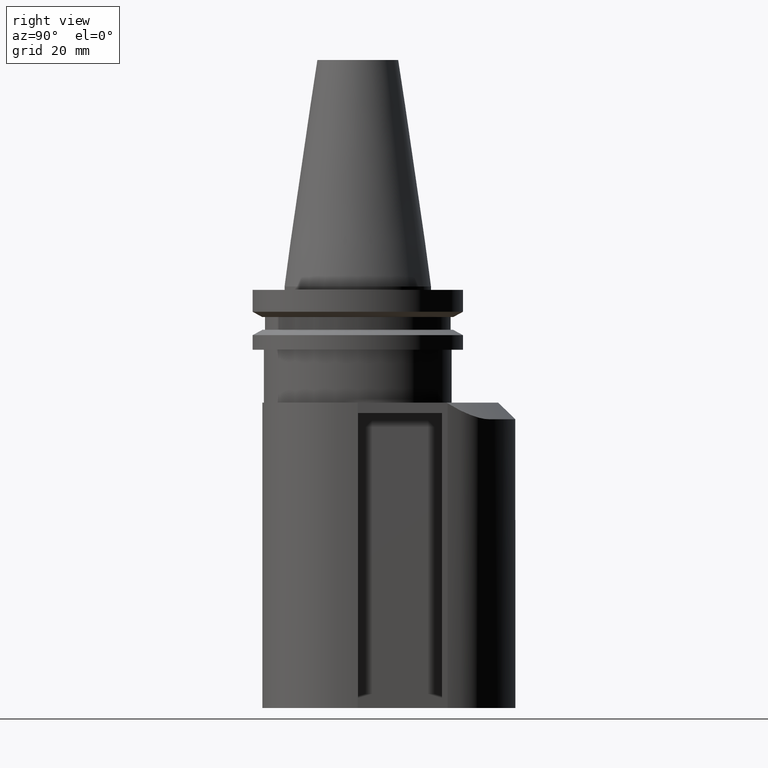
[diagram: clean part render]
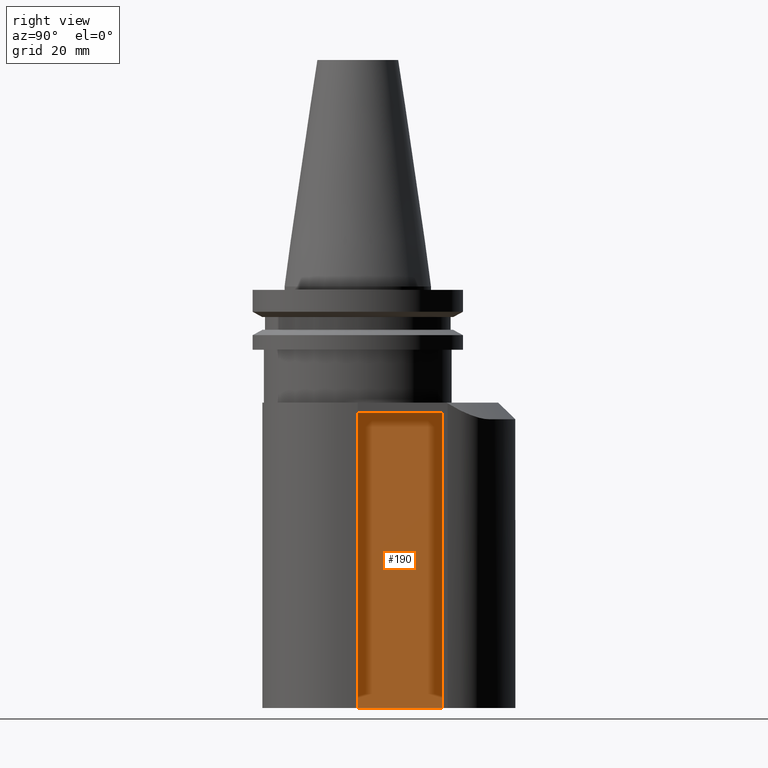
[diagram: same view with one face highlighted and labeled with its STEP entity id]
A machine part, right view. The second image highlights one B-rep face of the part: STEP entity #190.
In plain terms, the highlighted planar face has unit normal (-1, 0, -0).
Its self-contained STEP definition (entity closure, byte-faithful):
#107=EDGE_CURVE('Unnamed[1]',#319,#320,#321,.T.);
#151=EDGE_CURVE('Unnamed[1]',#352,#319,#389,.T.);
#177=EDGE_CURVE('Unnamed[1]',#426,#352,#427,.T.);
#190=ADVANCED_FACE('Unnamed[1]',(#445),#446,.F.);
#256=EDGE_CURVE('Unnamed[1]',#426,#320,#535,.T.);
#319=VERTEX_POINT('',#603);
#320=VERTEX_POINT('',#604);
#321=LINE('',#605,#606);
#352=VERTEX_POINT('',#648);
#389=LINE('',#705,#706);
#426=VERTEX_POINT('',#754);
#427=LINE('',#755,#756);
#445=FACE_OUTER_BOUND('',#781,.T.);
#446=PLANE('',#782);
#535=LINE('',#927,#928);
#603=CARTESIAN_POINT('',(7.60000000000019,8.15360787878083E-014,-38.0999999999998));
#604=CARTESIAN_POINT('',(7.60000000000057,25.4000000000001,-38.0999999999998));
#605=CARTESIAN_POINT('',(7.60000000000057,25.4000000000001,-38.0999999999998));
#606=VECTOR('',#1032,1.0);
#648=CARTESIAN_POINT('',(7.6000000000002,7.60925237655984E-014,-126.999999999999));
#705=CARTESIAN_POINT('',(7.60000000000022,6.84384812709277E-014,-251.999999999994));
#706=VECTOR('',#1105,1.0);
#754=CARTESIAN_POINT('',(7.60000000000059,25.4000000000001,-126.999999999999));
#755=CARTESIAN_POINT('',(7.6000000000003,6.34999999999981,-126.999999999999));
#756=VECTOR('',#1156,1.0);
#781=EDGE_LOOP('',(#1174,#1175,#1176,#1177));
#782=AXIS2_PLACEMENT_3D('',#1178,#1179,#1180);
#927=CARTESIAN_POINT('',(7.6000000000006,25.4000000000001,-251.999999999994));
#928=VECTOR('',#1280,1.0);
#1032=DIRECTION('',(1.50099824510868E-014,1.0,-6.12323399573659E-017));
#1105=DIRECTION('',(-1.22464679914735E-016,6.12323399573677E-017,1.0));
#1156=DIRECTION('',(-1.50099824510868E-014,-1.0,6.12323399574989E-017));
#1174=ORIENTED_EDGE('',*,*,#177,.F.);
#1175=ORIENTED_EDGE('',*,*,#256,.T.);
#1176=ORIENTED_EDGE('',*,*,#107,.F.);
#1177=ORIENTED_EDGE('',*,*,#151,.F.);
#1178=CARTESIAN_POINT('',(7.60000000000041,12.7000000000001,-251.999999999994));
#1179=DIRECTION('',(-1.0,1.50099824510868E-014,-1.22464679914736E-016));
#1180=DIRECTION('',(1.50099824510868E-014,1.0,-6.12323399573659E-017));
#1280=DIRECTION('',(-1.22464679914735E-016,6.12323399573677E-017,1.0));